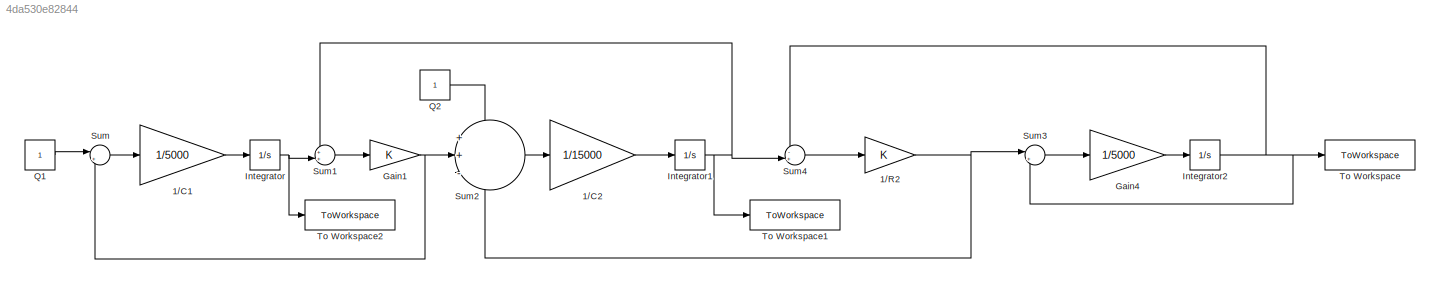
MODEL slx_4da530e82844
KIND model
CONFIG AbsTol = auto
CONFIG EnableMultiTasking = off
CONFIG FixedStep = auto
CONFIG MaxStep = auto
CONFIG MinStep = auto
CONFIG RelTol = 1e-3
CONFIG SampleTimeConstraint = Unconstrained
CONFIG SolverName = VariableStepAuto
CONFIG StartTime = 0.0
CONFIG StopTime = 1800
BLOCK [Gain] 1//C1
  Gain = 1/5000
BLOCK [Gain] 1//C2
  Gain = 1/15000
BLOCK [Gain] 1//R2
BLOCK [Gain] Gain1
BLOCK [Gain] Gain4
  Gain = 1/5000
BLOCK [Integrator] Integrator
  Ports = [1, 1]
BLOCK [Integrator] Integrator1
  Ports = [1, 1]
BLOCK [Integrator] Integrator2
  Ports = [1, 1]
BLOCK [Constant] Q1
BLOCK [Constant] Q2
BLOCK [Sum] Sum
  Inputs = |++
  Ports = [2, 1]
BLOCK [Sum] Sum1
  Inputs = ++|
  Ports = [2, 1]
BLOCK [Sum] Sum2
  Inputs = ++-
  Ports = [3, 1]
BLOCK [Sum] Sum3
  Inputs = |+-
  Ports = [2, 1]
BLOCK [Sum] Sum4
  Inputs = -+|
  Ports = [2, 1]
BLOCK [ToWorkspace] To Workspace
  FixptAsFi = on
  MaxDataPoints = inf
  Ports = [1]
  SampleTime = -1
  VariableName = H3
BLOCK [ToWorkspace] To Workspace1
  FixptAsFi = on
  MaxDataPoints = inf
  Ports = [1]
  SampleTime = -1
  VariableName = H2
BLOCK [ToWorkspace] To Workspace2
  FixptAsFi = on
  MaxDataPoints = inf
  Ports = [1]
  SampleTime = -1
  VariableName = H1
LINE 1//C1:1 -> Integrator:1
LINE 1//C2:1 -> Integrator1:1
NET 1//R2:1 -> Sum2:3, Sum3:1
NET Gain1:1 -> Sum2:2, Sum:2
LINE Gain4:1 -> Integrator2:1
NET Integrator1:1 -> Sum1:1, Sum4:2, To Workspace1:1
NET Integrator2:1 -> Sum3:2, Sum4:1, To Workspace:1
NET Integrator:1 -> Sum1:2, To Workspace2:1
LINE Q1:1 -> Sum:1
LINE Q2:1 -> Sum2:1
LINE Sum1:1 -> Gain1:1
LINE Sum2:1 -> 1//C2:1
LINE Sum3:1 -> Gain4:1
LINE Sum4:1 -> 1//R2:1
LINE Sum:1 -> 1//C1:1
note: NET lines group one-source signal fan-out (src -> all destinations, sorted); 1:1 wires keep LINE
